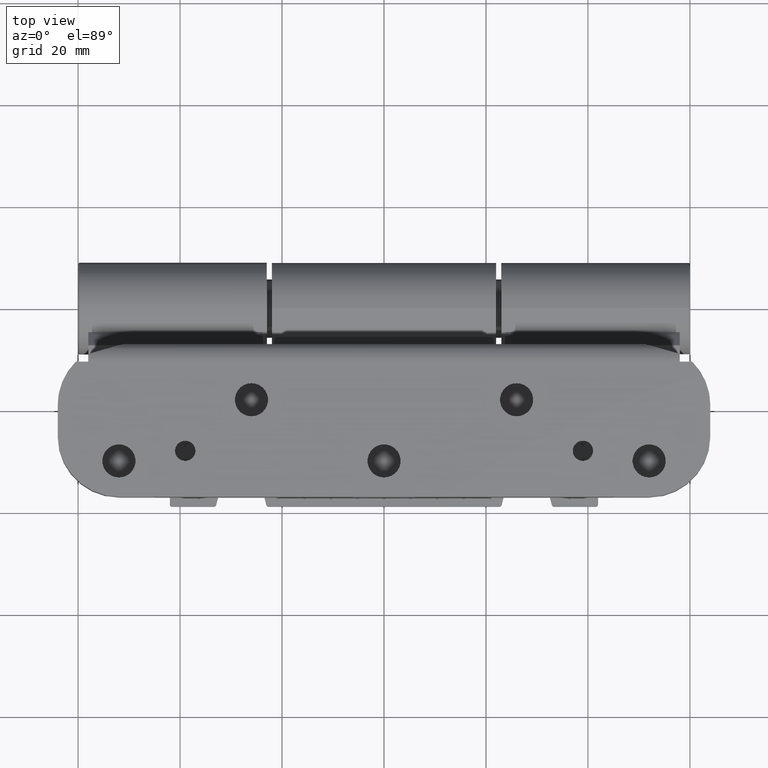
[diagram: clean part render]
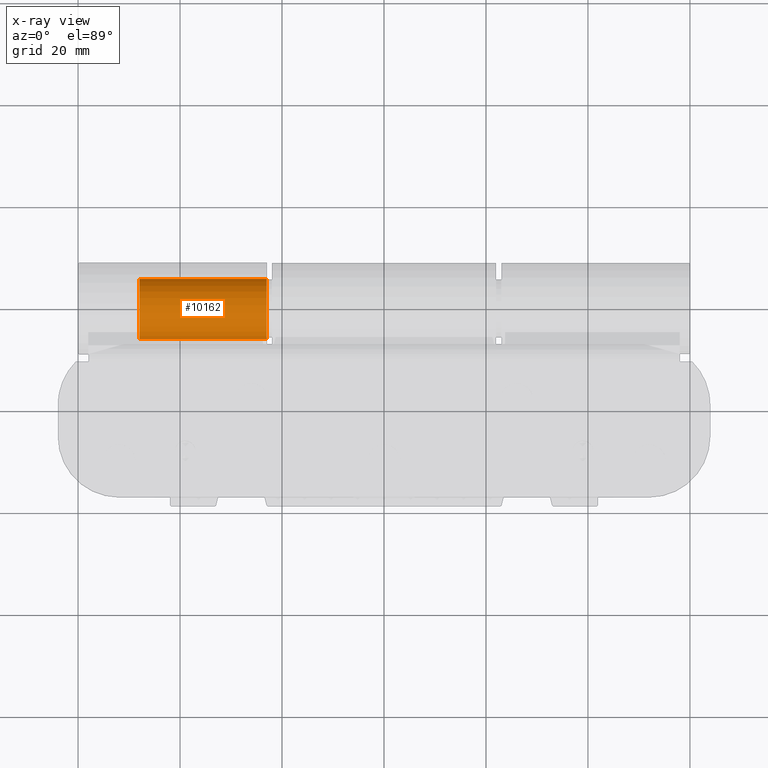
[diagram: x-ray — body ghosted, one internal face saturated and labeled with its STEP entity id]
A machine part, top view, then the same camera in x-ray: the body is ghosted and one INTERNAL B-rep face — a face not visible from any outside direction — is saturated and labeled: STEP entity #10162.
In plain terms, the highlighted cylindrical surface (edge-blend (fillet) strip) has radius 6 mm, axis along (1, 0, 0).
Its self-contained STEP definition (entity closure, byte-faithful):
#1923 = VERTEX_POINT ( 'NONE', #21420 ) ;
#3849 = ORIENTED_EDGE ( 'NONE', *, *, #18856, .F. ) ;
#4056 = EDGE_LOOP ( 'NONE', ( #3849, #27507, #33101, #13896 ) ) ;
#4358 = CIRCLE ( 'NONE', #33433, 6.000000000000004441 ) ;
#5466 = CARTESIAN_POINT ( 'NONE',  ( 1.928529861436674099E-15, 1.141763601020513678E-14, -6.000000000000000000 ) ) ;
#5668 = EDGE_CURVE ( 'NONE', #42545, #15371, #30780, .T. ) ;
#8483 = CARTESIAN_POINT ( 'NONE',  ( 25.50000000000000355, 1.387778780781445676E-14, 6.000000000000014211 ) ) ;
#10162 = ADVANCED_FACE ( 'NONE', ( #36033 ), #16555, .F. ) ;
#11873 = CARTESIAN_POINT ( 'NONE',  ( 25.50000000000000355, 1.387778780781445676E-14, 9.540979117872439019E-15 ) ) ;
#12388 = LINE ( 'NONE', #8483, #28549 ) ;
#13896 = ORIENTED_EDGE ( 'NONE', *, *, #24201, .F. ) ;
#14553 = AXIS2_PLACEMENT_3D ( 'NONE', #11873, #39700, #47721 ) ;
#14918 = CARTESIAN_POINT ( 'NONE',  ( 25.50000000000000000, 1.461257588730287080E-14, -5.999999999999994671 ) ) ;
#15371 = VERTEX_POINT ( 'NONE', #5466 ) ;
#16550 = DIRECTION ( 'NONE',  ( -1.000000000000000000, -2.457646059305950343E-16, -3.214216435727794932E-16 ) ) ;
#16555 = CYLINDRICAL_SURFACE ( 'NONE', #14553, 6.000000000000004441 ) ;
#18683 = EDGE_CURVE ( 'NONE', #15371, #1923, #4358, .T. ) ;
#18856 = EDGE_CURVE ( 'NONE', #42545, #33991, #36739, .T. ) ;
#18969 = VECTOR ( 'NONE', #25844, 1000.000000000000000 ) ;
#21420 = CARTESIAN_POINT ( 'NONE',  ( 1.928529861436679621E-15, 0.000000000000000000, 6.000000000000004441 ) ) ;
#24201 = EDGE_CURVE ( 'NONE', #33991, #1923, #12388, .T. ) ;
#25844 = DIRECTION ( 'NONE',  ( -1.000000000000000000, -2.457646059305950343E-16, -3.214216435727794932E-16 ) ) ;
#27507 = ORIENTED_EDGE ( 'NONE', *, *, #5668, .T. ) ;
#27799 = CARTESIAN_POINT ( 'NONE',  ( 25.00000000000000000, 1.387778780781445676E-14, 9.540979117872439019E-15 ) ) ;
#28549 = VECTOR ( 'NONE', #16550, 1000.000000000000000 ) ;
#30169 = AXIS2_PLACEMENT_3D ( 'NONE', #27799, #40271, #43408 ) ;
#30780 = LINE ( 'NONE', #14918, #18969 ) ;
#31767 = CARTESIAN_POINT ( 'NONE',  ( 25.00000000000000355, 1.461257588730287080E-14, -5.999999999999989342 ) ) ;
#33101 = ORIENTED_EDGE ( 'NONE', *, *, #18683, .T. ) ;
#33433 = AXIS2_PLACEMENT_3D ( 'NONE', #38748, #39001, #35094 ) ;
#33991 = VERTEX_POINT ( 'NONE', #43990 ) ;
#35094 = DIRECTION ( 'NONE',  ( 3.214216435727796904E-16, 0.000000000000000000, 1.000000000000000000 ) ) ;
#36033 = FACE_OUTER_BOUND ( 'NONE', #4056, .T. ) ;
#36739 = CIRCLE ( 'NONE', #30169, 6.000000000000004441 ) ;
#38748 = CARTESIAN_POINT ( 'NONE',  ( 0.000000000000000000, 0.000000000000000000, 0.000000000000000000 ) ) ;
#39001 = DIRECTION ( 'NONE',  ( -1.000000000000000000, -2.457646059305950343E-16, -3.214216435727794932E-16 ) ) ;
#39700 = DIRECTION ( 'NONE',  ( -1.000000000000000000, -2.457646059305950343E-16, -3.214216435727794932E-16 ) ) ;
#40271 = DIRECTION ( 'NONE',  ( -1.000000000000000000, -2.457646059305950343E-16, -3.214216435727794932E-16 ) ) ;
#42545 = VERTEX_POINT ( 'NONE', #31767 ) ;
#43408 = DIRECTION ( 'NONE',  ( 5.782411586589352708E-16, 0.000000000000000000, 1.000000000000000000 ) ) ;
#43990 = CARTESIAN_POINT ( 'NONE',  ( 24.99999999999999645, 1.387778780781445518E-14, 6.000000000000019540 ) ) ;
#47721 = DIRECTION ( 'NONE',  ( 5.782411586589352708E-16, 0.000000000000000000, 1.000000000000000000 ) ) ;